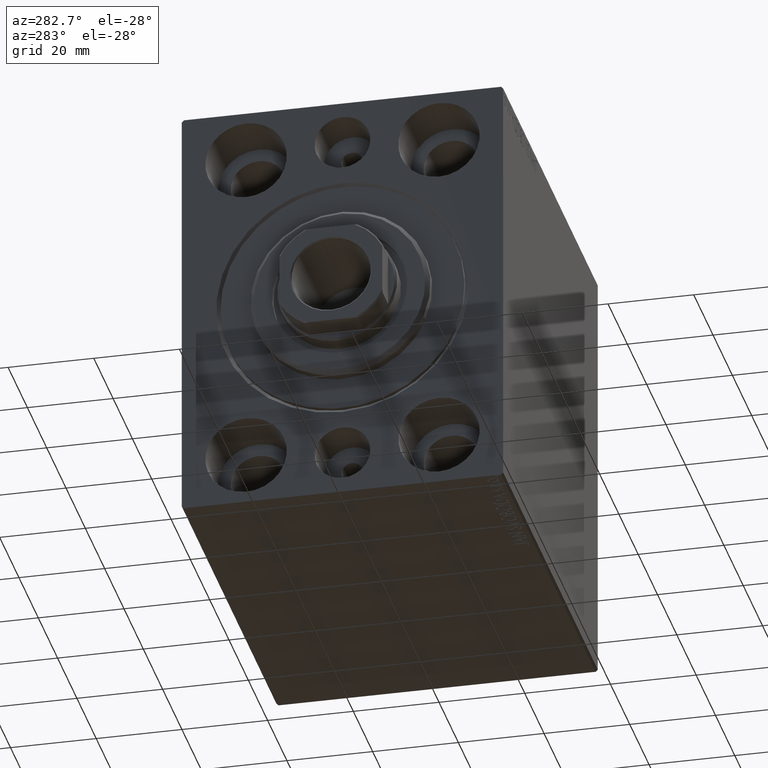
[diagram: clean part render]
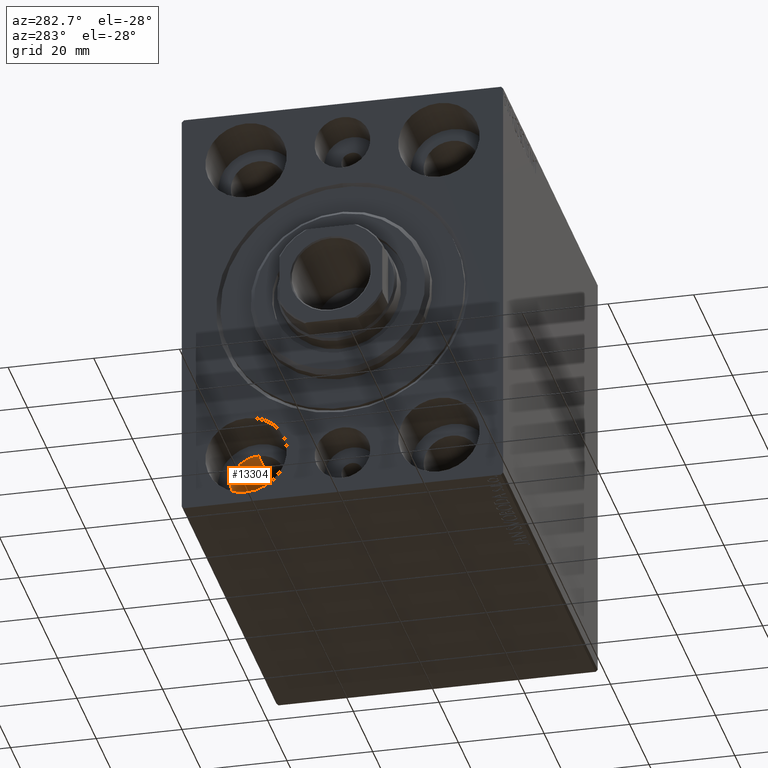
[diagram: same view with one face highlighted and labeled with its STEP entity id]
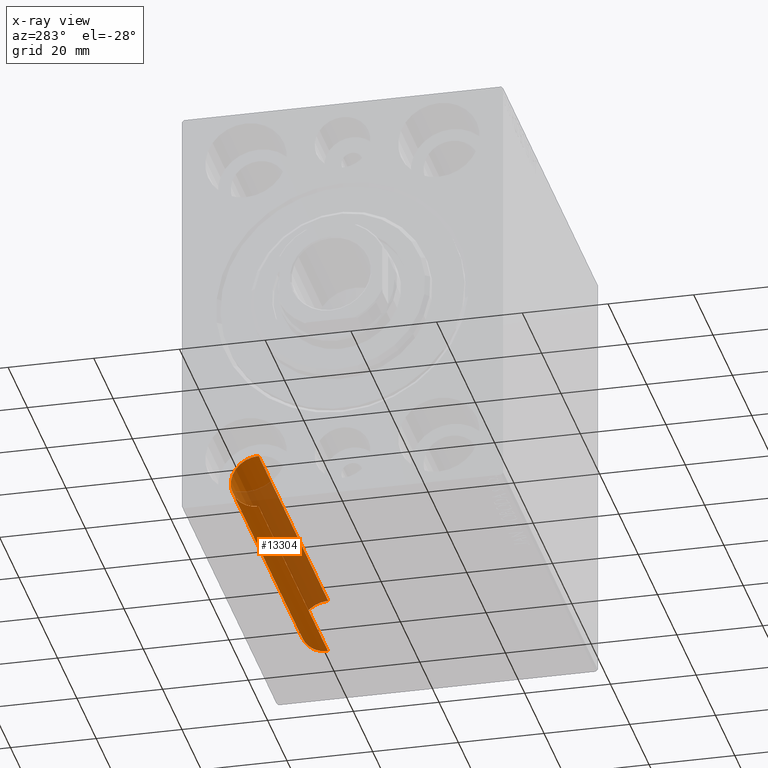
[diagram: x-ray of the same camera — body ghosted, the highlighted face saturated]
A machine part, auxiliary view. The second image highlights one B-rep face of the part: STEP entity #13304.
The next image is the same camera in x-ray: the body ghosted, the highlighted face saturated — about 46% of this face is hidden behind the body in this view.
In plain terms, the highlighted cylindrical surface (edge-blend (fillet) strip) has radius 6.5 mm, axis along (-1, -0, -0).
Its self-contained STEP definition (entity closure, byte-faithful):
#881 = AXIS2_PLACEMENT_3D ( 'NONE', #18994, #1948, #5474 ) ;
#1948 = DIRECTION ( 'NONE',  ( -1.000000000000000000, 0.000000000000000000, 0.000000000000000000 ) ) ;
#2541 = VERTEX_POINT ( 'NONE', #8002 ) ;
#5474 = DIRECTION ( 'NONE',  ( 0.000000000000000000, 0.000000000000000000, 1.000000000000000000 ) ) ;
#5589 = VECTOR ( 'NONE', #43216, 1000.000000000000000 ) ;
#8002 = CARTESIAN_POINT ( 'NONE',  ( 12.99999999999999822, 22.49999999999999645, -31.49999999999999289 ) ) ;
#10139 = EDGE_CURVE ( 'NONE', #2541, #25972, #31313, .T. ) ;
#11134 = ORIENTED_EDGE ( 'NONE', *, *, #29473, .T. ) ;
#11364 = CARTESIAN_POINT ( 'NONE',  ( 85.00000000000000000, 22.49999999999999645, -44.49999999999999289 ) ) ;
#11598 = LINE ( 'NONE', #21797, #23966 ) ;
#12846 = EDGE_CURVE ( 'NONE', #14753, #33401, #27846, .T. ) ;
#13304 = ADVANCED_FACE ( 'NONE', ( #15476 ), #15257, .F. ) ;
#14753 = VERTEX_POINT ( 'NONE', #34095 ) ;
#15049 = DIRECTION ( 'NONE',  ( 0.000000000000000000, 0.000000000000000000, 1.000000000000000000 ) ) ;
#15257 = CYLINDRICAL_SURFACE ( 'NONE', #19321, 6.499999999999999112 ) ;
#15338 = ORIENTED_EDGE ( 'NONE', *, *, #12846, .F. ) ;
#15476 = FACE_OUTER_BOUND ( 'NONE', #39468, .T. ) ;
#16505 = DIRECTION ( 'NONE',  ( -1.000000000000000000, -0.000000000000000000, -0.000000000000000000 ) ) ;
#17213 = AXIS2_PLACEMENT_3D ( 'NONE', #19818, #16505, #42688 ) ;
#18994 = CARTESIAN_POINT ( 'NONE',  ( 12.99999999999999822, 22.49999999999999645, -37.99999999999999289 ) ) ;
#19321 = AXIS2_PLACEMENT_3D ( 'NONE', #29007, #42090, #15049 ) ;
#19818 = CARTESIAN_POINT ( 'NONE',  ( 85.00000000000000000, 22.49999999999999645, -37.99999999999999289 ) ) ;
#21797 = CARTESIAN_POINT ( 'NONE',  ( 98.00000000000000000, 22.49999999999999645, -31.49999999999999289 ) ) ;
#23089 = ORIENTED_EDGE ( 'NONE', *, *, #10139, .T. ) ;
#23966 = VECTOR ( 'NONE', #32217, 1000.000000000000000 ) ;
#25972 = VERTEX_POINT ( 'NONE', #43310 ) ;
#27846 = CIRCLE ( 'NONE', #17213, 6.499999999999999112 ) ;
#29007 = CARTESIAN_POINT ( 'NONE',  ( 98.00000000000000000, 22.49999999999999645, -37.99999999999999289 ) ) ;
#29473 = EDGE_CURVE ( 'NONE', #14753, #2541, #11598, .T. ) ;
#31313 = CIRCLE ( 'NONE', #881, 6.499999999999999112 ) ;
#32217 = DIRECTION ( 'NONE',  ( -1.000000000000000000, -0.000000000000000000, -0.000000000000000000 ) ) ;
#33019 = LINE ( 'NONE', #42786, #5589 ) ;
#33401 = VERTEX_POINT ( 'NONE', #11364 ) ;
#34095 = CARTESIAN_POINT ( 'NONE',  ( 85.00000000000000000, 22.49999999999999645, -31.49999999999999289 ) ) ;
#34599 = EDGE_CURVE ( 'NONE', #33401, #25972, #33019, .T. ) ;
#37541 = ORIENTED_EDGE ( 'NONE', *, *, #34599, .F. ) ;
#39468 = EDGE_LOOP ( 'NONE', ( #37541, #15338, #11134, #23089 ) ) ;
#42090 = DIRECTION ( 'NONE',  ( -1.000000000000000000, -0.000000000000000000, -0.000000000000000000 ) ) ;
#42688 = DIRECTION ( 'NONE',  ( 0.000000000000000000, 0.000000000000000000, -1.000000000000000000 ) ) ;
#42786 = CARTESIAN_POINT ( 'NONE',  ( 98.00000000000000000, 22.49999999999999645, -44.49999999999999289 ) ) ;
#43216 = DIRECTION ( 'NONE',  ( -1.000000000000000000, -0.000000000000000000, -0.000000000000000000 ) ) ;
#43310 = CARTESIAN_POINT ( 'NONE',  ( 12.99999999999999822, 22.49999999999999645, -44.49999999999999289 ) ) ;